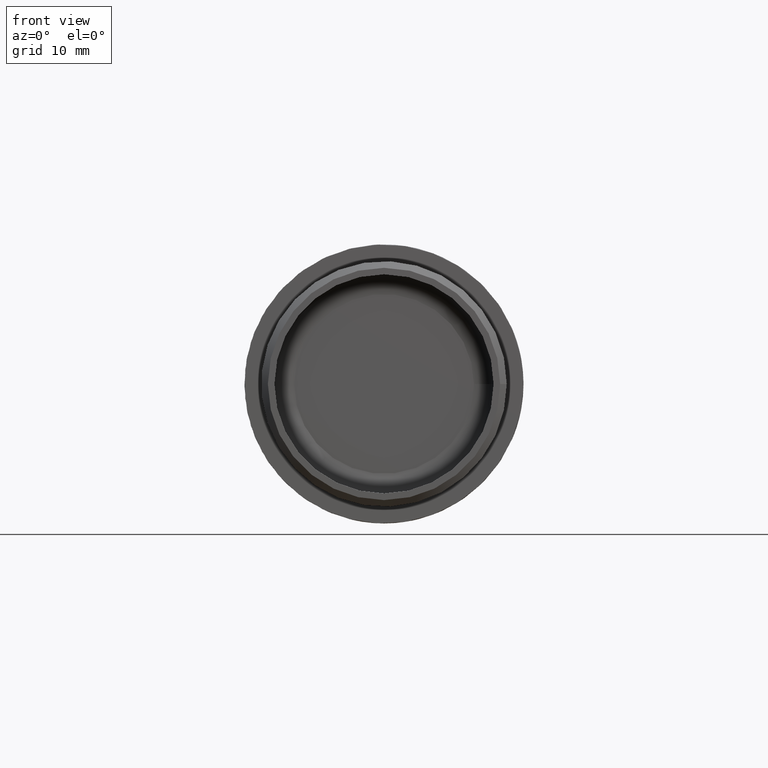
[diagram: clean part render]
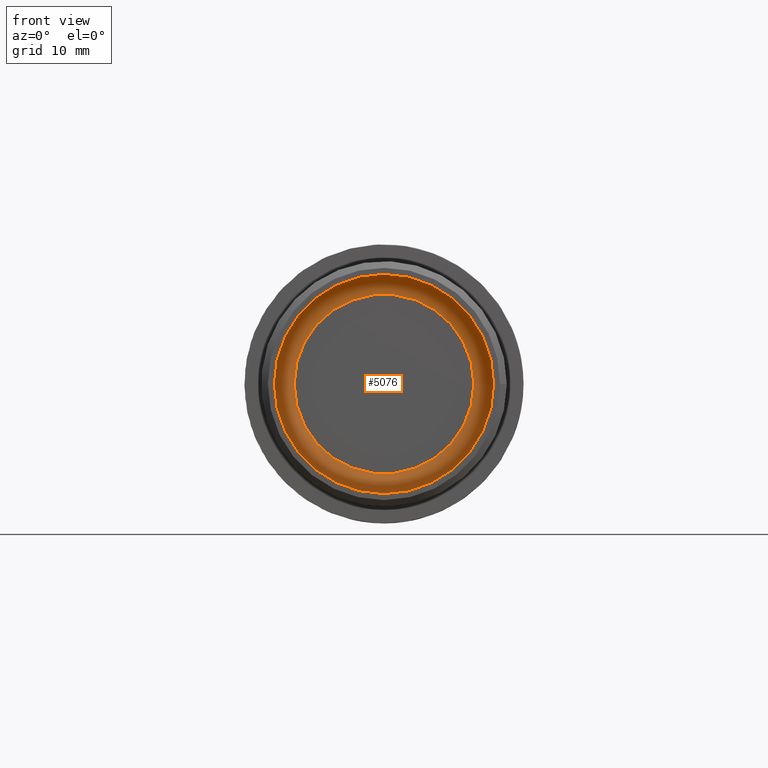
[diagram: same view with one face highlighted and labeled with its STEP entity id]
A machine part, front view. The second image highlights one B-rep face of the part: STEP entity #5076.
In plain terms, the highlighted toroidal blend (fillet) surface has major radius 13.65 mm and minor (blend) radius 3 mm.
Its self-contained STEP definition (entity closure, byte-faithful):
#320 = DIRECTION ( 'NONE',  ( -6.837611295239389200E-017, 1.000000000000000000, 0.0000000000000000000 ) ) ;
#1854 = FACE_OUTER_BOUND ( 'NONE', #17945, .T. ) ;
#2535 = EDGE_LOOP ( 'NONE', ( #13226 ) ) ;
#2579 = FACE_OUTER_BOUND ( 'NONE', #2535, .T. ) ;
#3252 = CARTESIAN_POINT ( 'NONE',  ( 2.038381726453984600E-016, -3.000000000000000900, 0.0000000000000000000 ) ) ;
#3276 = CARTESIAN_POINT ( 'NONE',  ( -1.290166211783211800E-018, -8.673617379884035500E-016, 0.0000000000000000000 ) ) ;
#4776 = DIRECTION ( 'NONE',  ( 1.000000000000000000, 6.837611295239389200E-017, 0.0000000000000000000 ) ) ;
#5018 = VERTEX_POINT ( 'NONE', #13426 ) ;
#5076 = ADVANCED_FACE ( 'NONE', ( #1854, #2579 ), #9760, .F. ) ;
#5158 = CARTESIAN_POINT ( 'NONE',  ( 2.038381726453984600E-016, -3.000000000000001300, 0.0000000000000000000 ) ) ;
#6480 = AXIS2_PLACEMENT_3D ( 'NONE', #3252, #9743, #17738 ) ;
#6833 = CIRCLE ( 'NONE', #12657, 13.64999999999999900 ) ;
#8555 = CIRCLE ( 'NONE', #19613, 16.64999999999999900 ) ;
#9743 = DIRECTION ( 'NONE',  ( 6.837611295239389200E-017, -1.000000000000000000, -0.0000000000000000000 ) ) ;
#9760 = TOROIDAL_SURFACE ( 'NONE', #6480, 13.64999999999999900, 3.000000000000000000 ) ;
#12192 = VERTEX_POINT ( 'NONE', #13357 ) ;
#12657 = AXIS2_PLACEMENT_3D ( 'NONE', #3276, #12793, #4776 ) ;
#12793 = DIRECTION ( 'NONE',  ( 6.837611295239389200E-017, -1.000000000000000000, -0.0000000000000000000 ) ) ;
#13226 = ORIENTED_EDGE ( 'NONE', *, *, #14748, .F. ) ;
#13357 = CARTESIAN_POINT ( 'NONE',  ( 16.64999999999999900, -3.000000000000000000, 0.0000000000000000000 ) ) ;
#13420 = ORIENTED_EDGE ( 'NONE', *, *, #15029, .F. ) ;
#13426 = CARTESIAN_POINT ( 'NONE',  ( 13.64999999999999900, 6.597220381177293700E-017, 0.0000000000000000000 ) ) ;
#14748 = EDGE_CURVE ( 'NONE', #12192, #12192, #8555, .T. ) ;
#15029 = EDGE_CURVE ( 'NONE', #5018, #5018, #6833, .T. ) ;
#16235 = DIRECTION ( 'NONE',  ( 1.000000000000000000, 7.814069711607240100E-017, 0.0000000000000000000 ) ) ;
#17738 = DIRECTION ( 'NONE',  ( 1.000000000000000000, 6.837611295239389200E-017, 0.0000000000000000000 ) ) ;
#17945 = EDGE_LOOP ( 'NONE', ( #13420 ) ) ;
#19613 = AXIS2_PLACEMENT_3D ( 'NONE', #5158, #320, #16235 ) ;